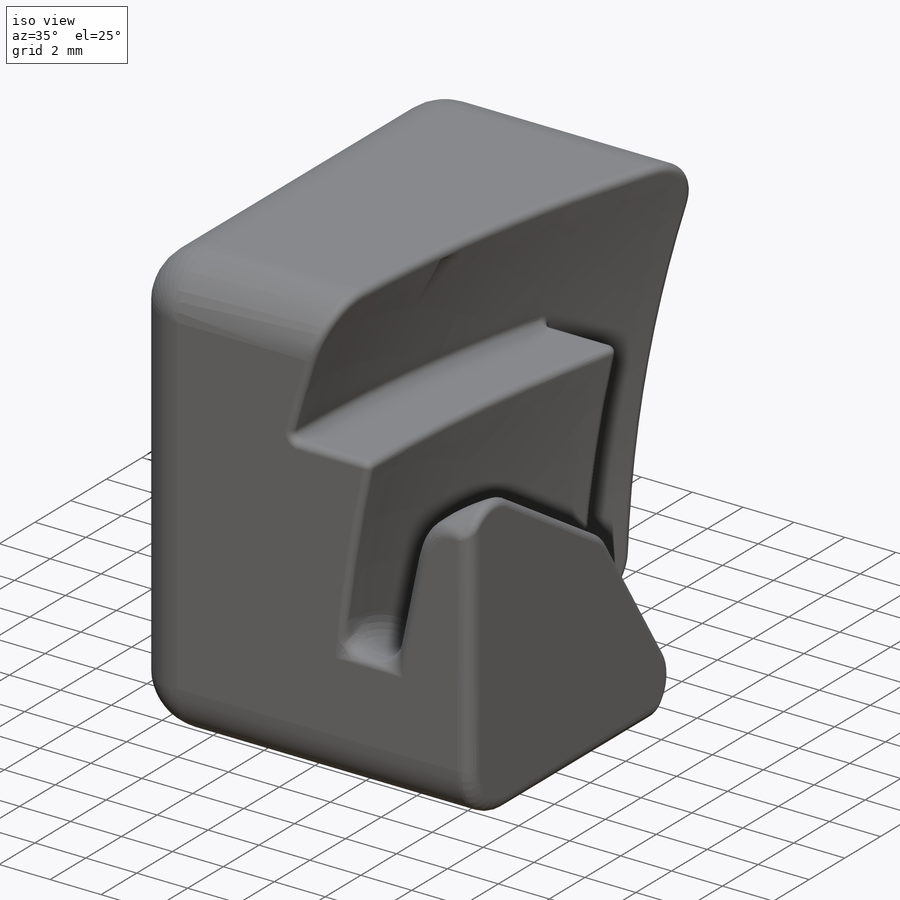
[diagram: iso view]
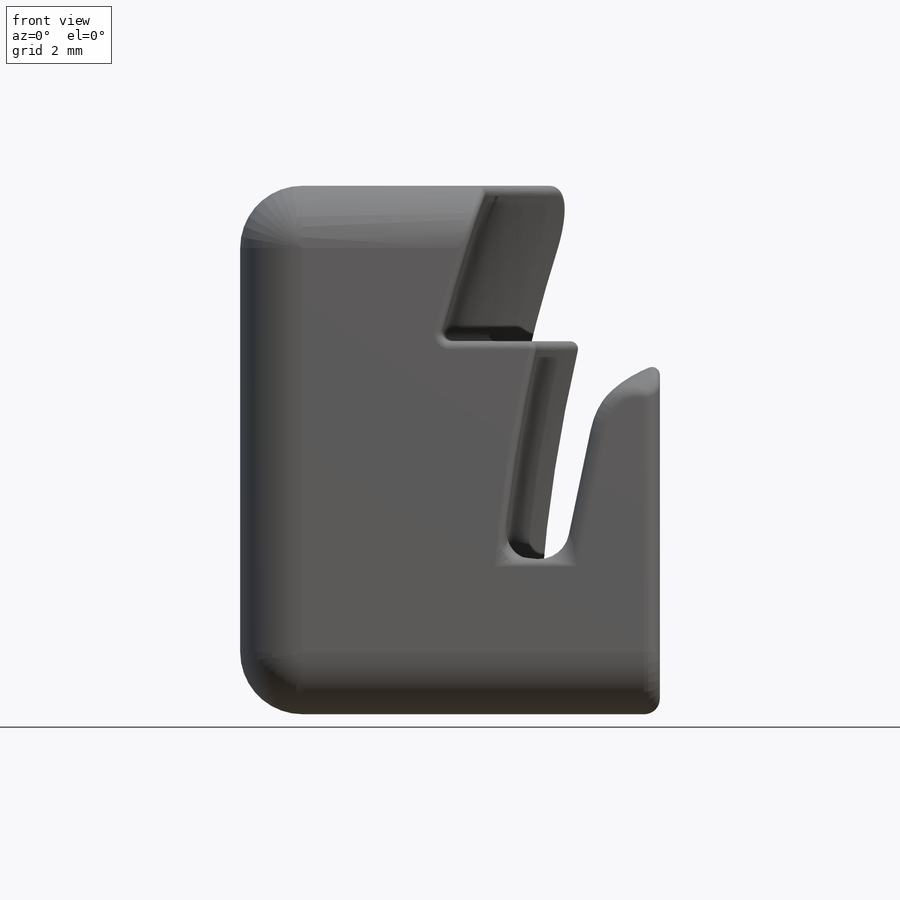
[diagram: front view]
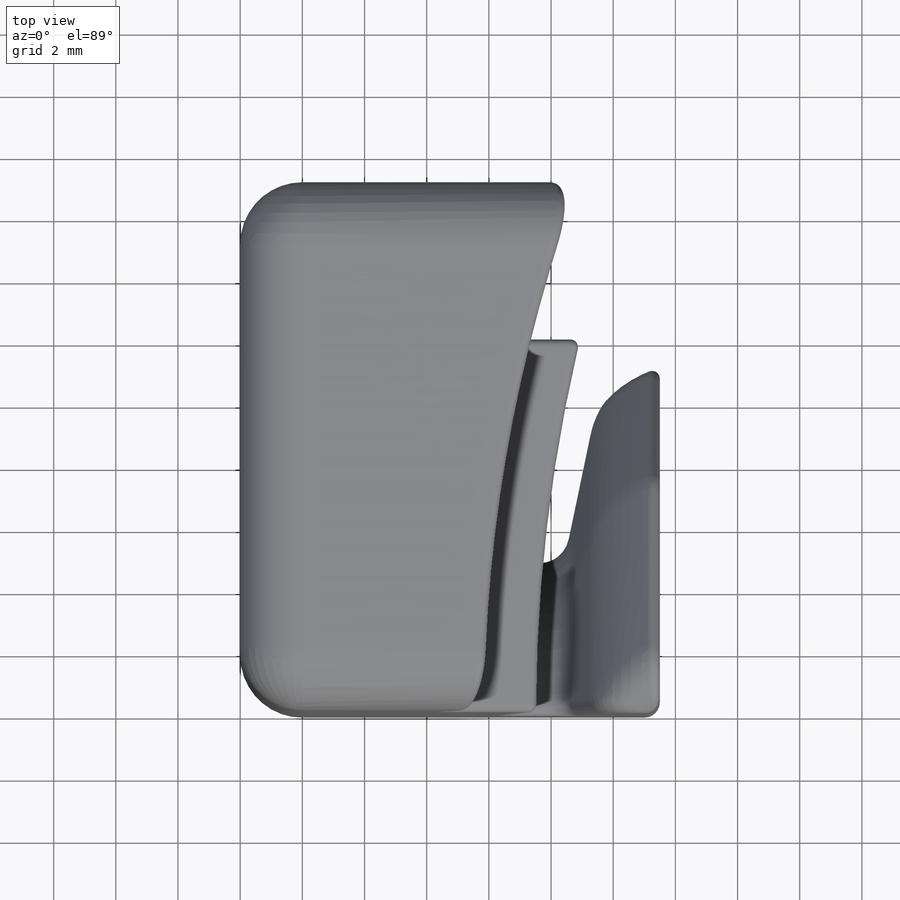
[diagram: top view]
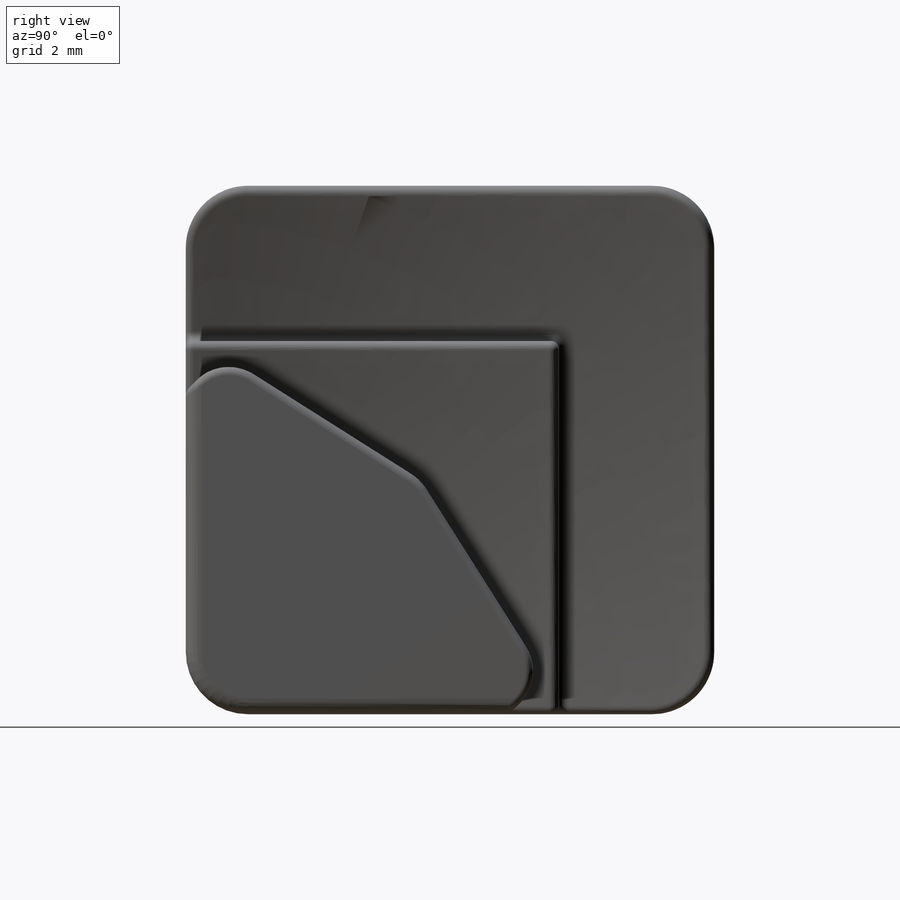
[diagram: right view]
SOLIDWORKS PART (.sldprt)
format: sldprt  version: not decoded by parser v0  size: 729,600 bytes
history: native  units: mm
features: sketch x9, fillet x5, extrude x3, material x1, revolve x1, cut_revolve x1, sweep x1, cut_extrude x1 (+16 scaffold rows collapsed)
feature tree (38):
  scaffold x16  (default folders/planes/origin — collapsed)
  material  "ABS"
  sketch  "Sketch1"  dims[D1=17.0mm D2=17.0mm]
  extrude  "Boss-Extrude1"  Depth=4.5mm
  sketch  "Sketch5"  dims[D4=61.0mm D1=11.0mm D2=~24.041631mm D3=3.0mm]
  revolve  "Revolve2"  Angle=90deg
  sketch  "Sketch6"  dims[D5=10.0mm D6=10.0mm D7=5.0mm]
  sketch  "Sketch7"  dims[c1.D1=52.0mm c1.D2=52.0mm c1.D3=52.0mm c2.D2=12.0mm c2.D1=11.0mm c3.D2=12.0mm]
  extrude  "Boss-Extrude2"  Depth=12mm
  sketch  "Sketch8"  dims[D1=~16.970563mm D2=0.0mm D3=~16.970563mm D4=0.0mm]
  cut_revolve  "Cut-Revolve1"  Angle=90deg
  sketch  "Sketch9"  dims[D1=5.0mm D2=5.0mm]
  extrude  "Boss-Extrude3"  Depth=13.5mm
  fillet  "Fillet1"  Radius=2mm
  fillet  "Fillet2"  Radius=0.25mm
  sketch  "Sketch10"  dims[c1.D4=1.5mm c1.D1=10.5mm c1.D2=~11.141527mm c2.D2=45.0deg c2.D3=10.0mm]
  sketch  "3DSketch4"  dims[c1.D3=4.0mm c1.D1=4.0mm c1.D2=~4.18139mm c2.D3=~4.18139mm c2.D2=~10.301876mm c2.D5=11.0mm c3.D3=~7.826903mm c3.D4=~3.060875mm c3.D2=~3.060875mm c4.D4=2.5mm c4.D2=3.0mm]
  sweep  "Sweep3"
  sketch  "Sketch16"  dims[D1=3.0mm D2=3.0mm]
  cut_extrude  "Cut-Extrude8"  [1 undecoded]
  fillet  "Fillet3"  Radius=0.5mm
  fillet  "Fillet4"  Radius=0.25mm
  fillet  "Fillet6"  Radius=1mm
decode coverage: 19 of 21 modeling features carry decoded parameters
note: ~ marks probable driven/reference dimensions
note: 1 parameter value undecoded
note: suppression state not decoded; provenance and decode notes live in map.json
